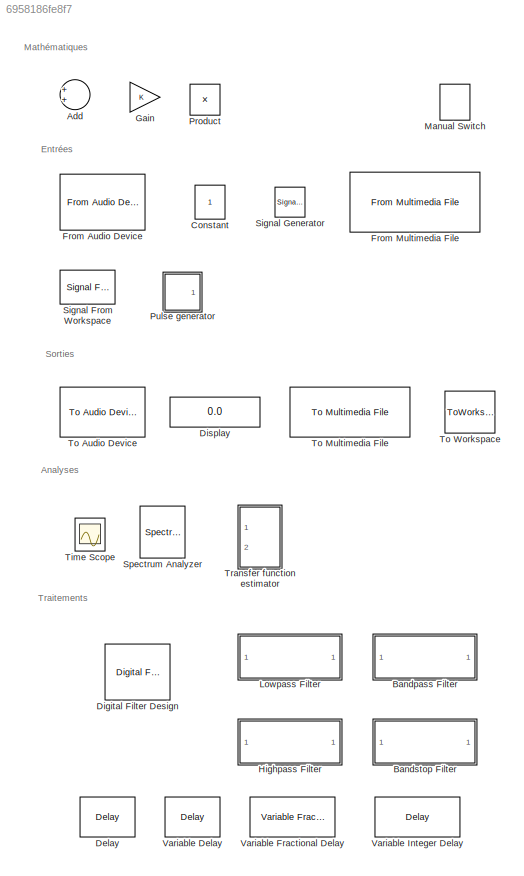
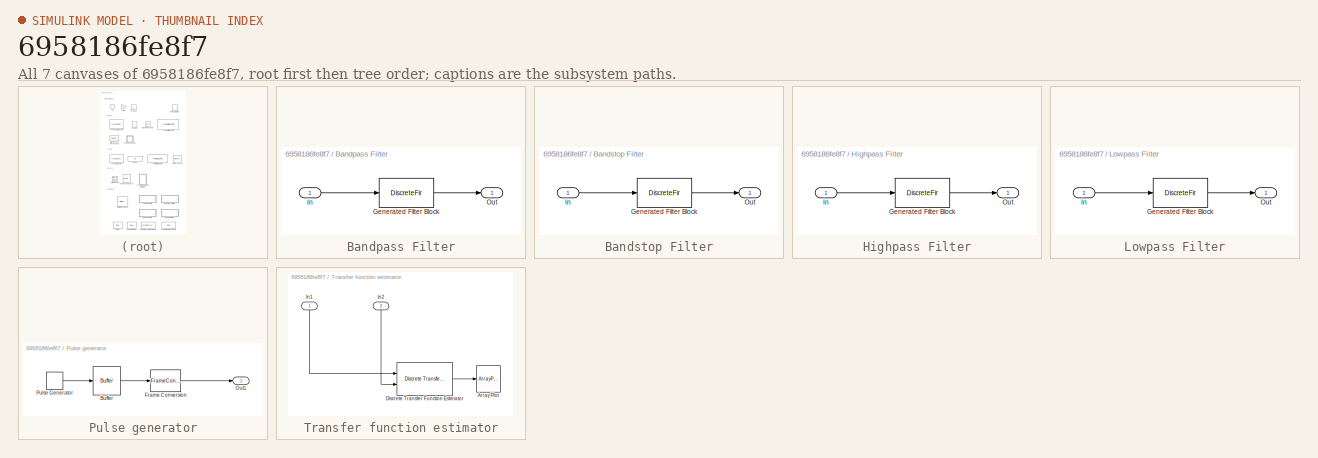
[diagram: thumbnail index - all 7 canvases of the model, root first then tree order]
MODEL slx_6958186fe8f7
KIND library
CONFIG AbsTol = auto
CONFIG FixedStep = auto
CONFIG MaxStep = auto
CONFIG MinStep = auto
CONFIG RelTol = 1e-3
CONFIG SampleTimeConstraint = Unconstrained
CONFIG Solver = ode45
CONFIG SolverMode = Auto
CONFIG SolverName = ode45
CONFIG StartTime = 0.0
CONFIG StopTime = 10.0
BLOCK [Sum] Add
  InputSameDT = off
  OutDataTypeStr = Inherit: Inherit via internal rule
  Ports = [2, 1]
  SaturateOnIntegerOverflow = off
BLOCK [SubSystem] Bandpass Filter
  CopyFcn = fdesignblkfcn(gcbh, {'CopyFcn'});
  DialogController = fdesignblkfcn
  InitFcn = fdesignblkfcn(gcbh, {'InitFcn'});
  Ports = [1, 1]
  RequestExecContextInheritance = off
  UserDataPersistent = on
  Variant = off
BLOCK [DiscreteFir] Bandpass Filter/Generated Filter Block
  Coefficients = [0.00145487204688885528 -0.0257757164809061523 -0.0154961019891340819 0.0344439493870172947 0.0115097335885992382 0.020748633693885337 0.0863287912807311486 -0.08086143736002184 -0.265551029631479307 0.050017971996636254 0.36058953309117231 0.050017971996636254 -0.265551029631479307 -0.08086143736002184 0.0863287912807311486 0.020748633693885337 0.0115097335885992382 0.0344439493870172947 -0.01549...<+61ch>
  InputPortMap = u0
  InputProcessing = Columns as channels (frame based)
  OutputPortMap = o0
  Ports = [1, 1]
  Tag = BlockMethodSubSystem
BLOCK [Inport] Bandpass Filter/In
  IconDisplay = Port number
BLOCK [Outport] Bandpass Filter/Out
  IconDisplay = Port number
BLOCK [SubSystem] Bandstop Filter
  CopyFcn = fdesignblkfcn(gcbh, {'CopyFcn'});
  DialogController = fdesignblkfcn
  InitFcn = fdesignblkfcn(gcbh, {'InitFcn'});
  Ports = [1, 1]
  RequestExecContextInheritance = off
  UserDataPersistent = on
  Variant = off
BLOCK [DiscreteFir] Bandstop Filter/Generated Filter Block
  Coefficients = [0.068428203108407068 -0.112824153131554777 -0.095934196931819149 -0.0678357126098109581 -0.0120668492639047983 0.0507019014458022152 0.0839729096350368548 0.0648109769310018374 0.00226627607110810184 -0.0646907037212710589 0.906667314762344412 -0.0646907037212710589 0.00226627607110810184 0.0648109769310018374 0.0839729096350368548 0.0507019014458022152 -0.0120668492639047983 -0.06783571260981095...<+68ch>
  InputPortMap = u0
  InputProcessing = Columns as channels (frame based)
  OutputPortMap = o0
  Ports = [1, 1]
  Tag = BlockMethodSubSystem
BLOCK [Inport] Bandstop Filter/In
  IconDisplay = Port number
BLOCK [Outport] Bandstop Filter/Out
  IconDisplay = Port number
BLOCK [Constant] Constant
  VectorParams1D = off
BLOCK [Delay] Delay
  DelayLength = 1
  DelayLengthUpperLimit = 5000
  InputPortMap = u0
  InputProcessing = Columns as channels (frame based)
  Ports = [1, 1]
BLOCK [Reference] Digital Filter Design  REF=dsparch4/Digital
Filter Design
  Ports = [1, 1]
  SourceBlock = dsparch4/Digital\nFilter Design
  SourceType = Digital Filter Design
  UserDataPersistent = on
BLOCK [Display] Display
  Decimation = 1
  Ports = [1]
BLOCK [Reference] From Audio Device  REF=dspsrcs4/From Audio
Device
  Ports = [0, 1]
  SourceBlock = dspsrcs4/From Audio\nDevice
  SourceType = From Audio Device
BLOCK [Reference] From Multimedia File  REF=dspvision/From Multimedia File
  Ports = [0, 1]
  SourceBlock = dspvision/From Multimedia File
  SourceType = From Multimedia File
BLOCK [Gain] Gain
  OutDataTypeStr = Inherit: Inherit via internal rule
  ParamDataTypeStr = Inherit: Inherit via internal rule
  SaturateOnIntegerOverflow = off
BLOCK [SubSystem] Highpass Filter
  CopyFcn = fdesignblkfcn(gcbh, {'CopyFcn'});
  DialogController = fdesignblkfcn
  InitFcn = fdesignblkfcn(gcbh, {'InitFcn'});
  Ports = [1, 1]
  RequestExecContextInheritance = off
  UserDataPersistent = on
  Variant = off
BLOCK [DiscreteFir] Highpass Filter/Generated Filter Block
  Coefficients = [0.0209800180162859756 -0.0206132779322321172 -0.023413586493171764 -0.00982538427506522705 0.022656337288466652 0.0514623626939051115 0.0407037090513912014 -0.0308156127751440558 -0.146545018650288961 -0.254897103724912921 0.700803760913058404 -0.254897103724912921 -0.146545018650288961 -0.0308156127751440558 0.0407037090513912014 0.0514623626939051115 0.022656337288466652 -0.00982538427506522705...<+68ch>
  InputPortMap = u0
  InputProcessing = Columns as channels (frame based)
  OutputPortMap = o0
  Ports = [1, 1]
  Tag = BlockMethodSubSystem
BLOCK [Inport] Highpass Filter/In
  IconDisplay = Port number
BLOCK [Outport] Highpass Filter/Out
  IconDisplay = Port number
BLOCK [SubSystem] Lowpass Filter
  CopyFcn = fdesignblkfcn(gcbh, {'CopyFcn'});
  DialogController = fdesignblkfcn
  InitFcn = fdesignblkfcn(gcbh, {'InitFcn'});
  Ports = [1, 1]
  RequestExecContextInheritance = off
  UserDataPersistent = on
  Variant = off
BLOCK [DiscreteFir] Lowpass Filter/Generated Filter Block
  Coefficients = [2.50606596102242362e-05 -0.000137613798736198572 0.000163370767243491345 0.000214028644429250798 -0.000211749055172579648 -0.000651442325393265624 -7.16938181093962606e-05 0.00133502830784752052 0.00140186203480473313 -0.0012801418811304022 -0.00393791878592938006 -0.00160266048757988044 0.00540316118214430752 0.00831949252759633245 -0.000601061894001873355 -0.0144745350808635556 -0.0140886818018...<+790ch>
  InputPortMap = u0
  InputProcessing = Columns as channels (frame based)
  OutputPortMap = o0
  Ports = [1, 1]
  Tag = BlockMethodSubSystem
BLOCK [Inport] Lowpass Filter/In
  IconDisplay = Port number
BLOCK [Outport] Lowpass Filter/Out
  IconDisplay = Port number
BLOCK [ManualSwitch] Manual Switch
  CurrentSetting = 0
BLOCK [Product] Product
  InputSameDT = off
  OutDataTypeStr = Inherit: Inherit via internal rule
  Ports = [2, 1]
  RndMeth = Floor
  SaturateOnIntegerOverflow = off
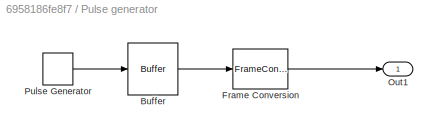
BLOCK [SubSystem] Pulse generator
  Ports = [0, 1]
  RequestExecContextInheritance = off
  Variant = off
BLOCK [Buffer] Pulse generator/Buffer
  N = NN
  OutputFrames = off
  TreatMby1Signals = One channel
BLOCK [FrameConversion] Pulse generator/Frame Conversion
  InheritSamplingMode = off
  Ports = [1, 1]
BLOCK [Outport] Pulse generator/Out1
  IconDisplay = Port number
BLOCK [DiscretePulseGenerator] Pulse generator/Pulse Generator
  Period = NN
  Ports = [0, 1]
  SampleTime = 1/fee
BLOCK [Reference] Signal From Workspace  REF=dspsrcs4/Signal From
Workspace
  Ports = [0, 1]
  SourceBlock = dspsrcs4/Signal From\nWorkspace
  SourceType = Signal From Workspace
BLOCK [SignalGenerator] Signal Generator
  Ports = [0, 1]
  Units = rad/sec
BLOCK [SpectrumAnalyzer] Spectrum Analyzer
  Ports = [1]
  ScopeSpecificationString = spbscopes.SpectrumAnalyzerBlockCfg('CurrentConfiguration', extmgr.ConfigurationSet(extmgr.Configuration('Core','General UI',true),extmgr.Configuration('Core','Source UI',true),extmgr.Configuration('Sources','WiredSimulink',true),extmgr.Configuration('Sources','Simulink',false),extmgr.Configuration('Sources','SimulinkEvent',false),extmgr.Configuration('Sources','File',false),extmgr.Configuration('S...<+1921ch>
BLOCK [Scope] Time Scope
  DefaultConfigurationName = spbscopes.TimeScopeBlockCfg
  NumInputPorts = 2
  Ports = [2]
  ScopeSpecificationString = spbscopes.TimeScopeBlockCfg('CurrentConfiguration', extmgr.ConfigurationSet(extmgr.Configuration('Core','General UI',true,'FigureColor',[0.156862745098039 0.156862745098039 0.156862745098039]),extmgr.Configuration('Core','Source UI',true),extmgr.Configuration('Sources','WiredSimulink',true),extmgr.Configuration('Visuals','Time Domain',true,'DisplayPropertyDefaults',struct('MinYLimReal','-10','MaxY...<+1346ch>
  UserDataPersistent = on
BLOCK [Reference] To Audio Device  REF=dspsnks4/To Audio
Device
  Ports = [1]
  SourceBlock = dspsnks4/To Audio\nDevice
  SourceType = To Audio Device
BLOCK [Reference] To Multimedia File  REF=dspvision/To Multimedia File
  Ports = [1]
  SourceBlock = dspvision/To Multimedia File
  SourceType = To Multimedia File
BLOCK [ToWorkspace] To Workspace
  MaxDataPoints = inf
  Ports = [1]
  SampleTime = -1
  Save2DSignal = 2-D array (concatenate along first dimension)
  VariableName = yout
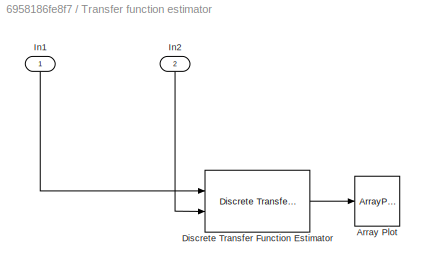
BLOCK [SubSystem] Transfer function estimator
  InitFcn = name=gcb;\np = Simulink.Mask.get(name);\nfe_tf = str2double(p.getParameter('fee').Value);\nN_tf = str2double(p.getParameter('NN').Value);
  Ports = [2]
  RequestExecContextInheritance = off
  Variant = off
BLOCK [ArrayPlot] Transfer function estimator/Array Plot
  NumInputPorts = 1
  Ports = [1]
  ScopeSpecificationString = dsp.scopes.ArrayPlotBlockSpecification('CurrentConfiguration', extmgr.ConfigurationSet(extmgr.Configuration('Core','General UI',true),extmgr.Configuration('Core','Source UI',true),extmgr.Configuration('Sources','WiredSimulink',true),extmgr.Configuration('Sources','SimulinkEvent',false),extmgr.Configuration('Sources','Simulink',false),extmgr.Configuration('Sources','File',false),extmgr.Configuratio...<+2840ch>
BLOCK [Reference] Transfer function estimator/Discrete Transfer Function Estimator  REF=dspspect3/Discrete
Transfer Function
Estimator
  Ports = [2, 1]
  SourceBlock = dspspect3/Discrete\nTransfer Function\nEstimator
  SourceType = Discrete Transfer Function Estimator
BLOCK [Inport] Transfer function estimator/In1
  IconDisplay = Port number
BLOCK [Inport] Transfer function estimator/In2
  IconDisplay = Port number
  Port = 2
BLOCK [Delay] Variable Delay
  DelayLength = 1
  DelayLengthSource = Input port
  DelayLengthUpperLimit = 5000
  InputPortMap = u0,p1
  InputProcessing = Columns as channels (frame based)
  Ports = [2, 1]
  PreventDirectFeedthrough = on
  RemoveProtectionDelayLength = on
BLOCK [Reference] Variable Fractional Delay  REF=dspsigops/Variable
Fractional Delay
  Ports = [2, 1]
  SourceBlock = dspsigops/Variable\nFractional Delay
  SourceType = Variable Fractional Delay
  UserDataPersistent = on
BLOCK [Delay] Variable Integer Delay
  DelayLengthSource = Input port
  InputPortMap = u0,p1
  InputProcessing = Columns as channels (frame based)
  Ports = [2, 1]
ANNOTATION (root): Sorties
ANNOTATION (root): Analyses
ANNOTATION (root): Traitements
ANNOTATION (root): Mathématiques
ANNOTATION (root): Entrées
LINE Pulse generator/Buffer:1 -> Pulse generator/Frame Conversion:1
LINE Pulse generator/Frame Conversion:1 -> Pulse generator/Out1:1
LINE Pulse generator/Pulse Generator:1 -> Pulse generator/Buffer:1
LINE Transfer function estimator/Discrete Transfer Function Estimator:1 -> Transfer function estimator/Array Plot:1
LINE Transfer function estimator/In1:1 -> Transfer function estimator/Discrete Transfer Function Estimator:1
LINE Transfer function estimator/In2:1 -> Transfer function estimator/Discrete Transfer Function Estimator:2
